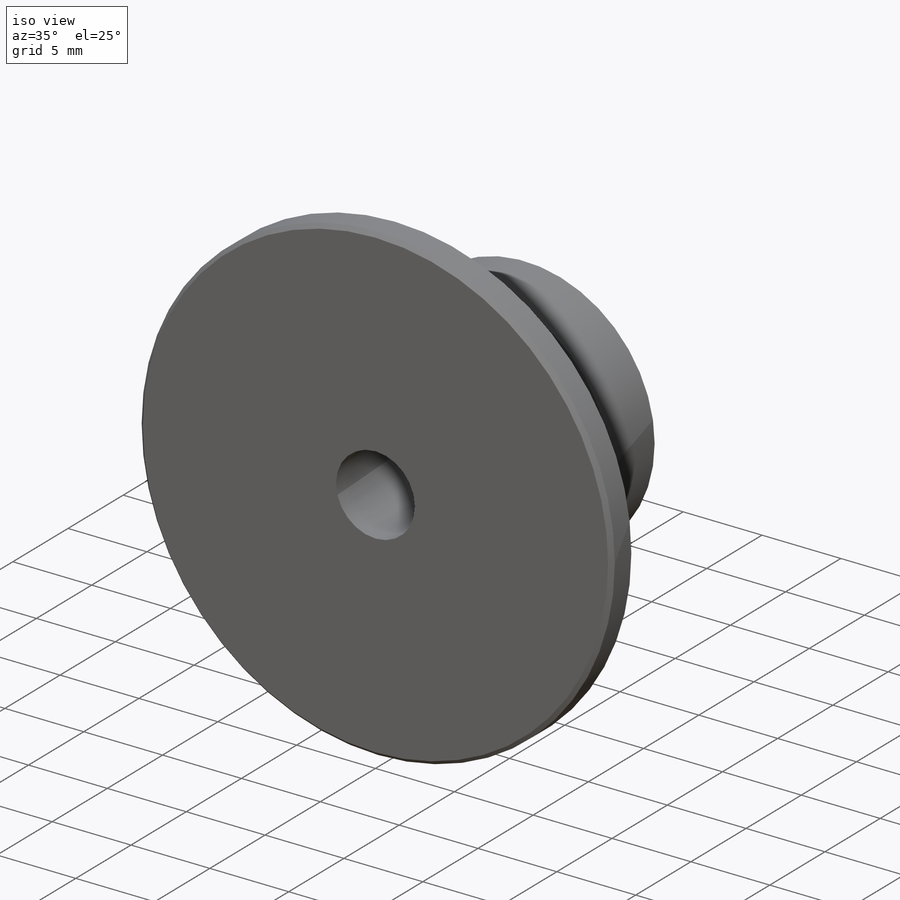
[diagram: iso view]
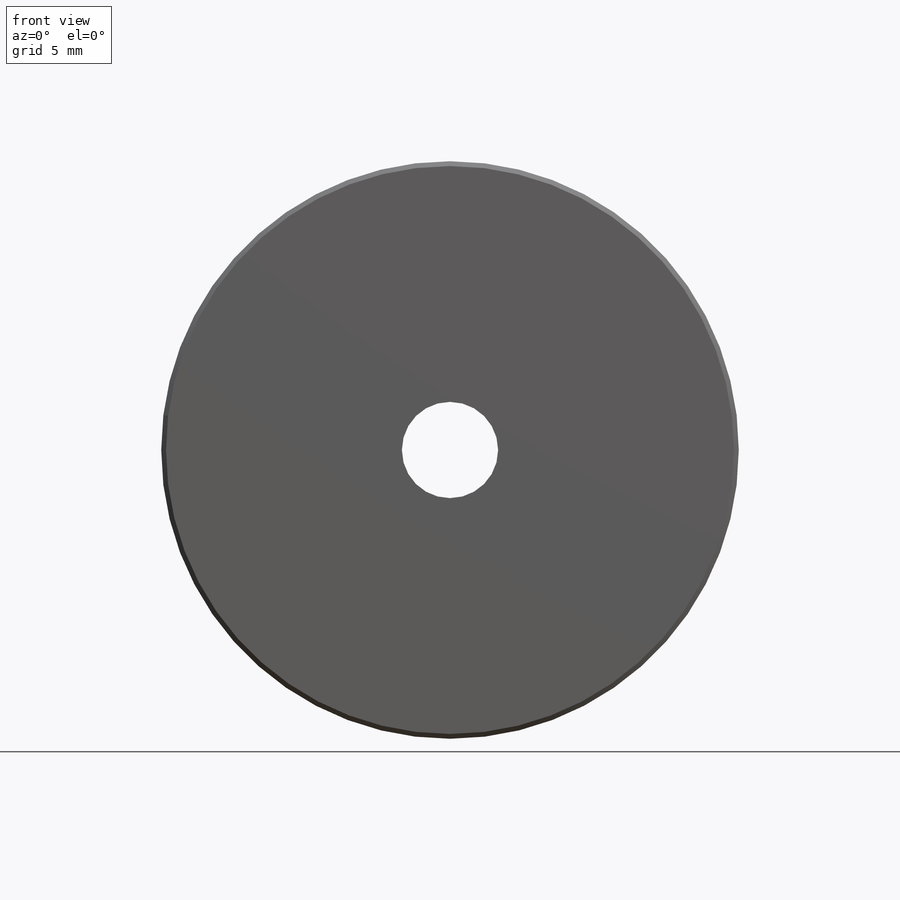
[diagram: front view]
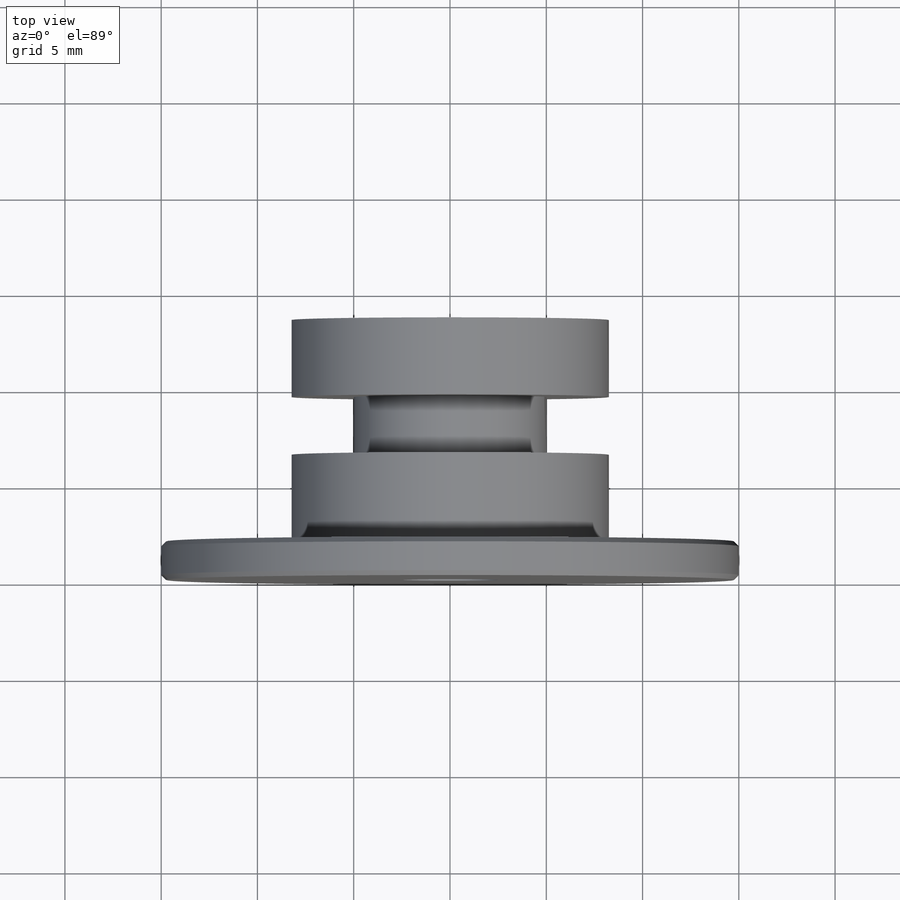
[diagram: top view]
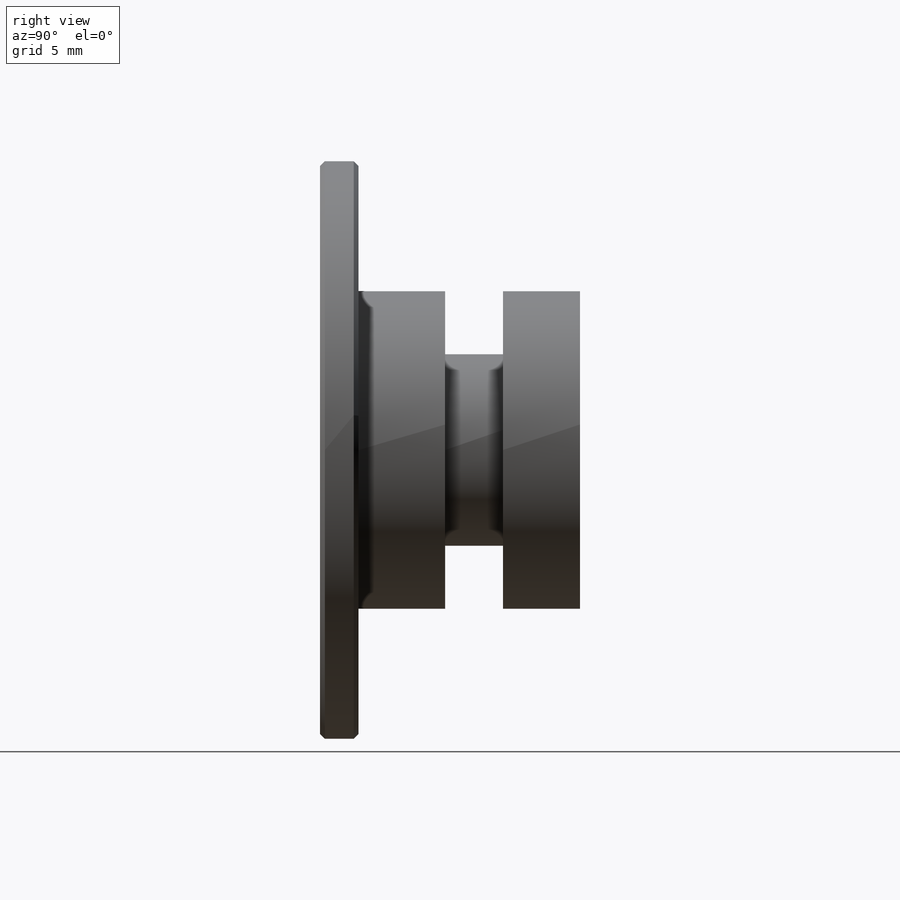
[diagram: right view]
SOLIDWORKS PART (.sldprt)
format: sldprt  version: not decoded by parser v0  size: 188,928 bytes
history: native  units: mm
features: sketch x3, revolve x2, material x1, chamfer x1, cut_extrude x1 (+15 scaffold rows collapsed)
feature tree (23):
  scaffold x15  (default folders/planes/origin — collapsed)
  material  "AISI 1020"
  sketch  "Sketch1"  dims[c1.D1=8.09mm c1.D2=1.0mm c1.D3=8.25mm c1.D4=4.5mm c1.D5=3.0mm c1.D6=3.58mm c2.D1=13.3mm c2.D5=5.0mm c3.D1=15.0mm c3.D6=1.0mm c3.D2=2.0mm c4.D6=6.55mm c5.D6=80.0deg c5.D5=6.0mm c5.D7=7.0mm c5.D8=5.0mm]
  revolve  "Revolve1"  Angle=360deg
  chamfer  "Chamfer1"  Distance=0.25mm Angle=45deg
  sketch  "Sketch2"  dims[D1=5.0mm]
  cut_extrude  "Cut-Extrude1"  Depth=10mm
  sketch  "Sketch5"  dims[D1=5.0mm D2=10.0mm D3=16.5mm D4=3.0mm D5=4.0mm]
  revolve  "Revolve2"  Angle=360deg
decode coverage: 7 of 7 modeling features carry decoded parameters
note: suppression state not decoded; provenance and decode notes live in map.json
